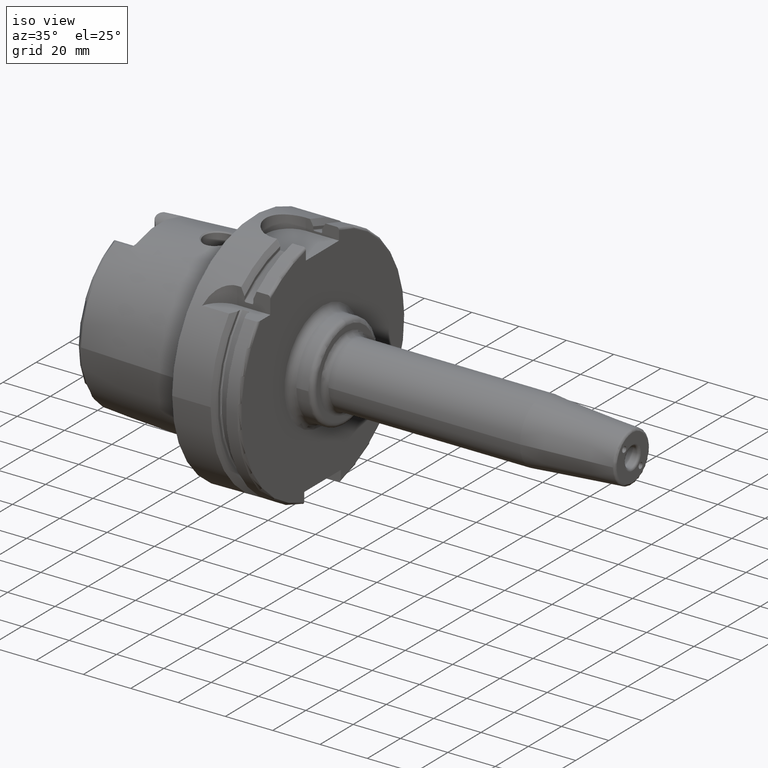
[diagram: clean part render]
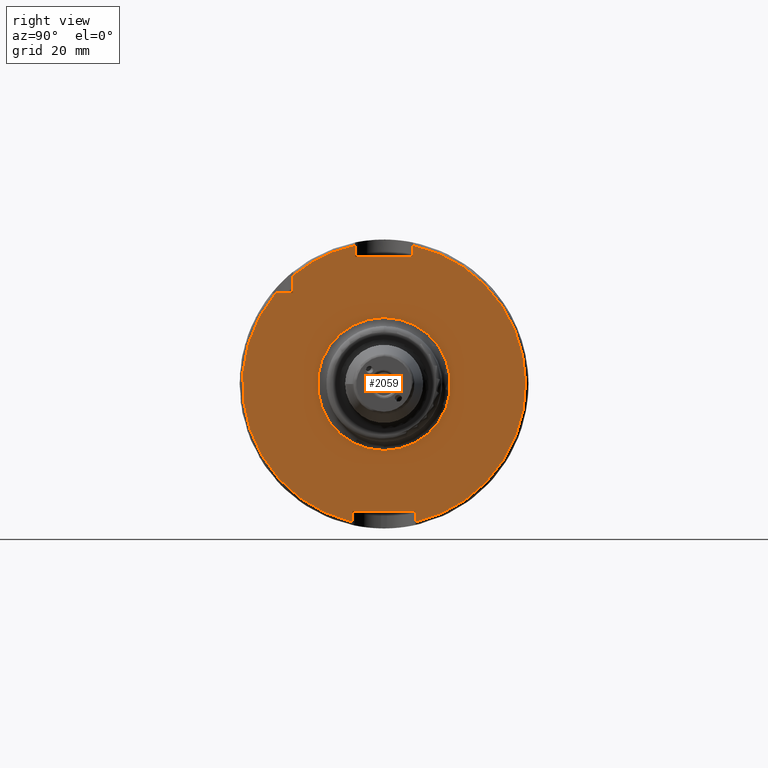
[diagram: tour spotlight — one face highlighted and labeled with its STEP entity id]
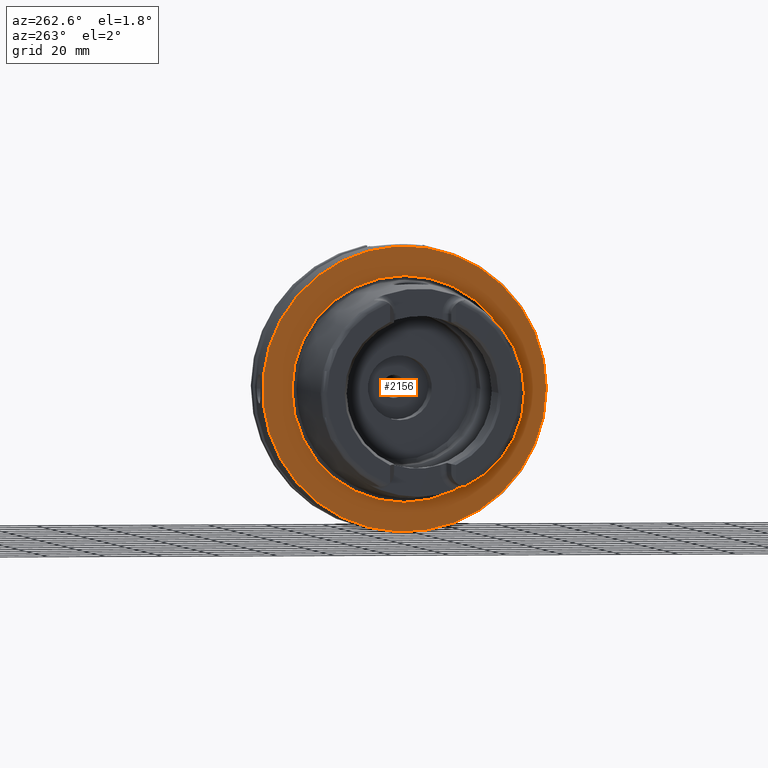
[diagram: tour spotlight — one face highlighted and labeled with its STEP entity id]
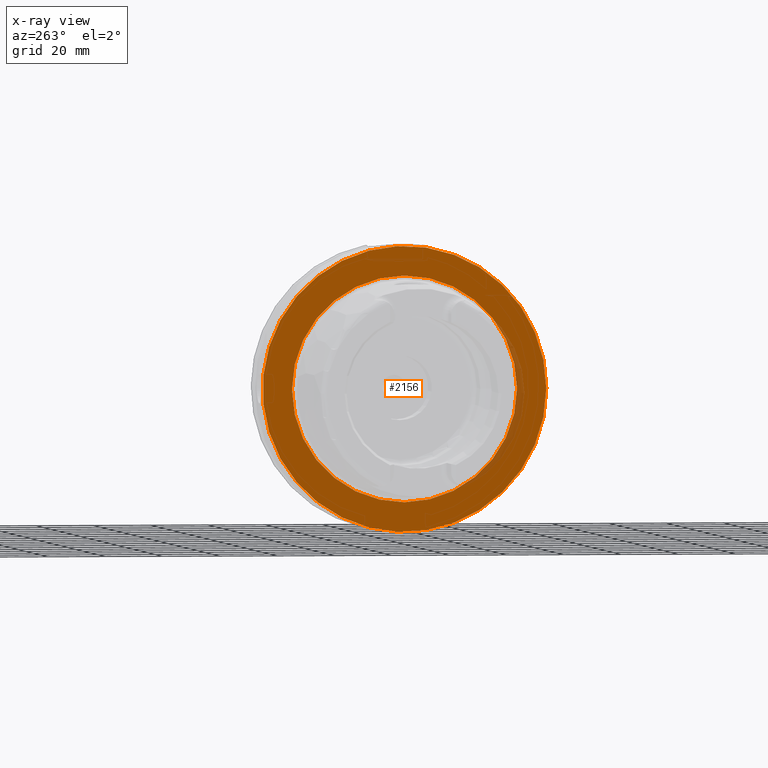
[diagram: x-ray of the same camera — body ghosted, this tour face saturated]
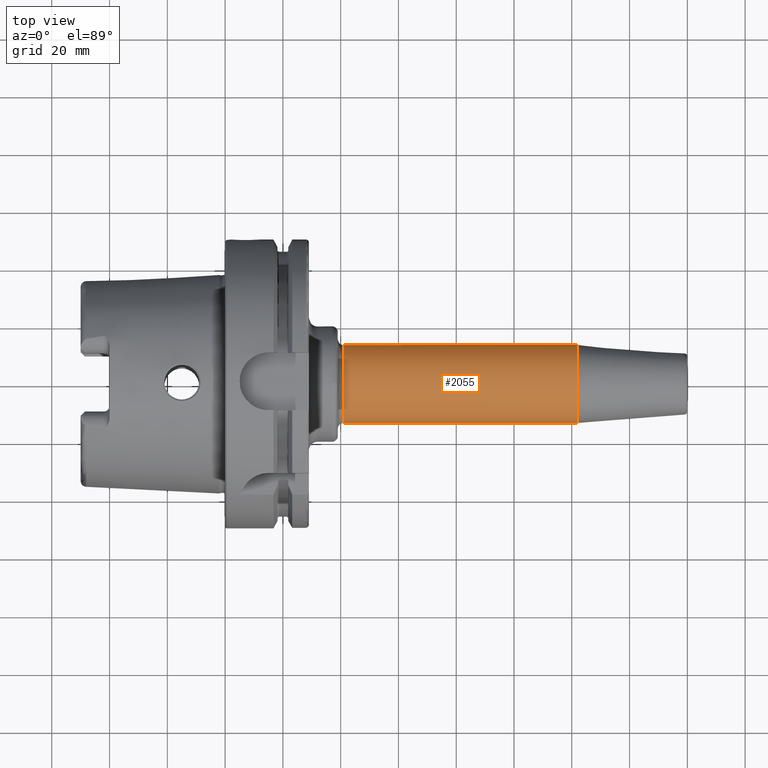
[diagram: tour spotlight — one face highlighted and labeled with its STEP entity id]
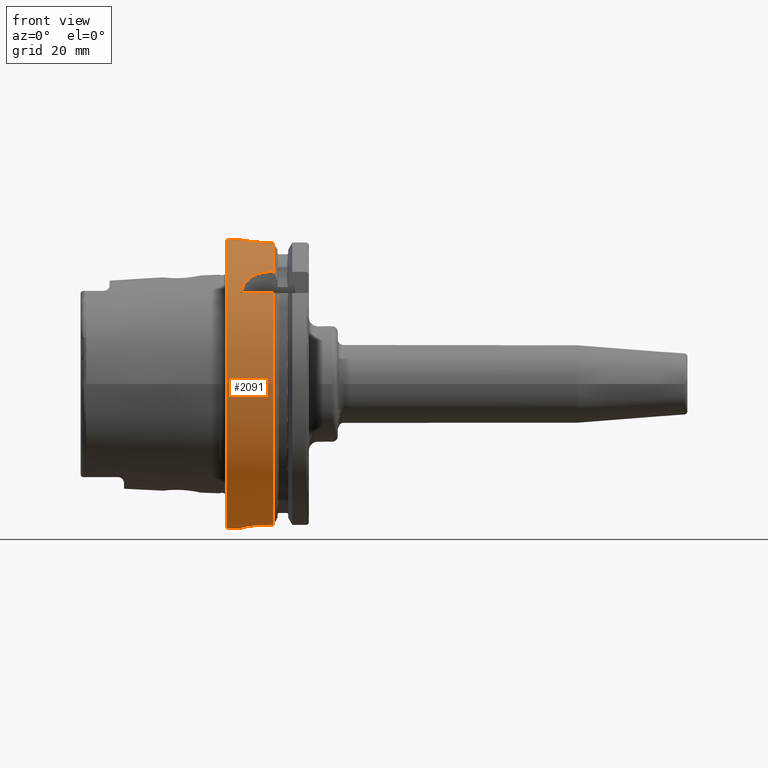
[diagram: tour spotlight — one face highlighted and labeled with its STEP entity id]
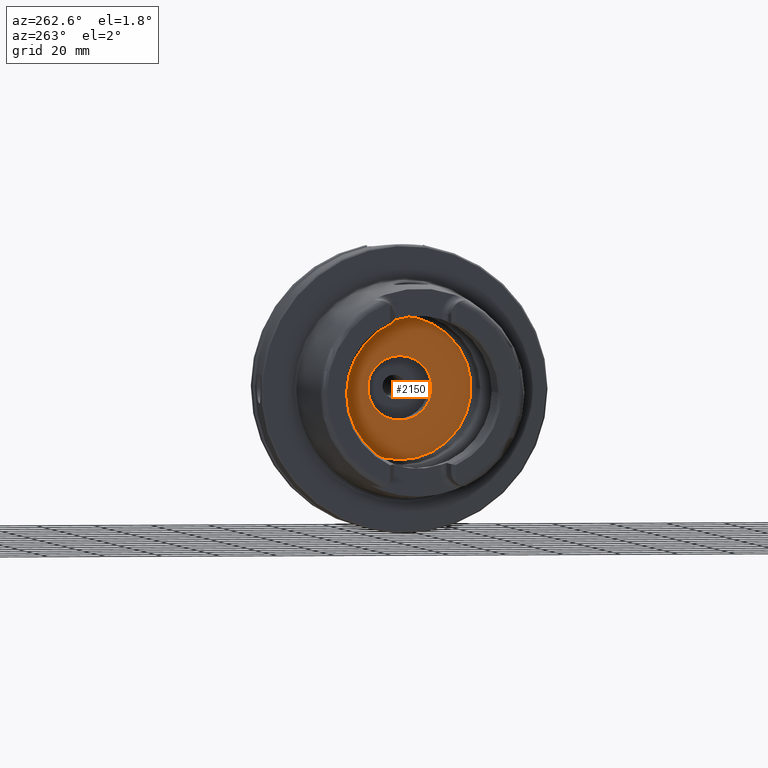
[diagram: tour spotlight — one face highlighted and labeled with its STEP entity id]
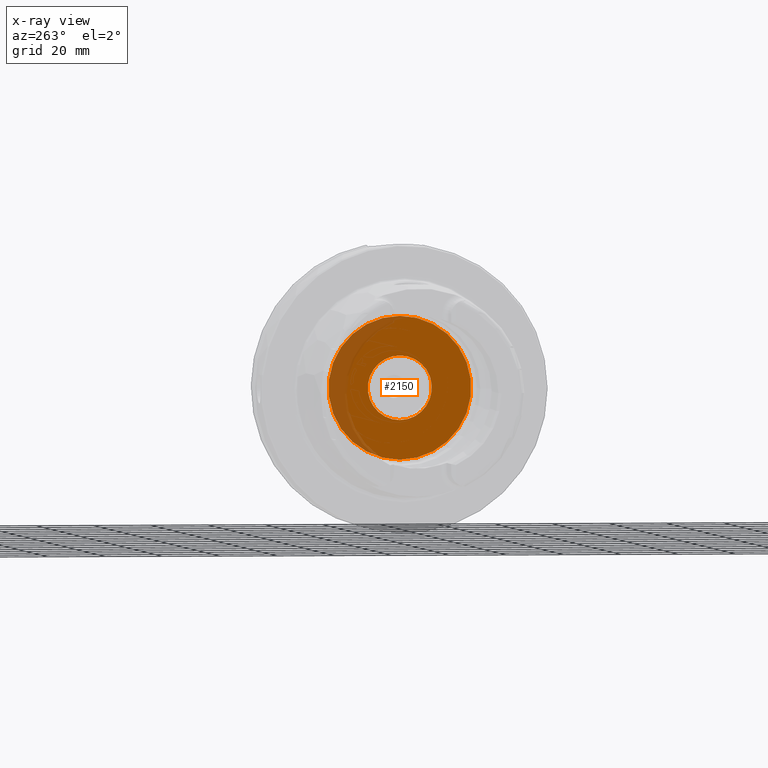
[diagram: x-ray of the same camera — body ghosted, this tour face saturated]
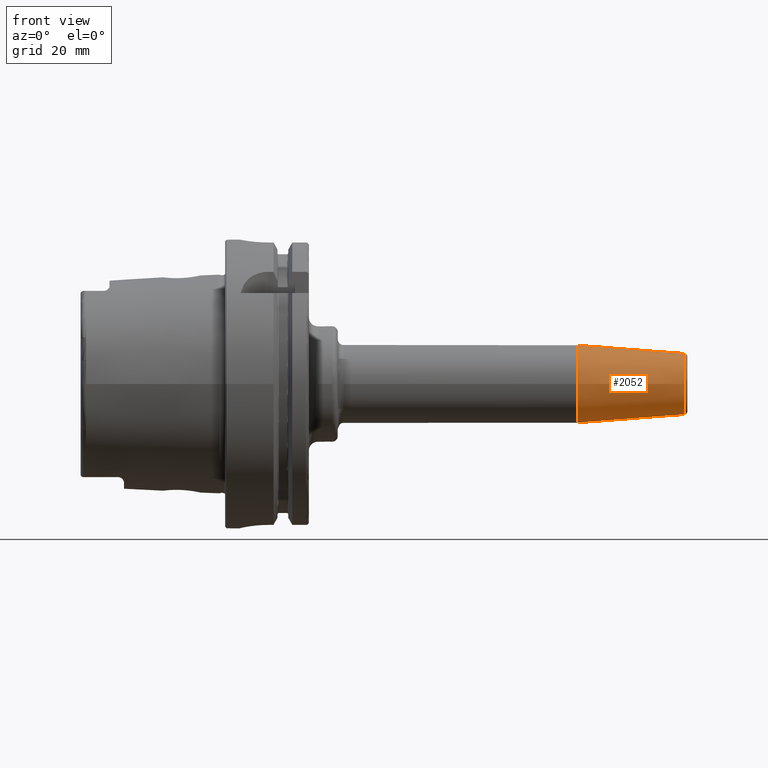
[diagram: tour spotlight — one face highlighted and labeled with its STEP entity id]
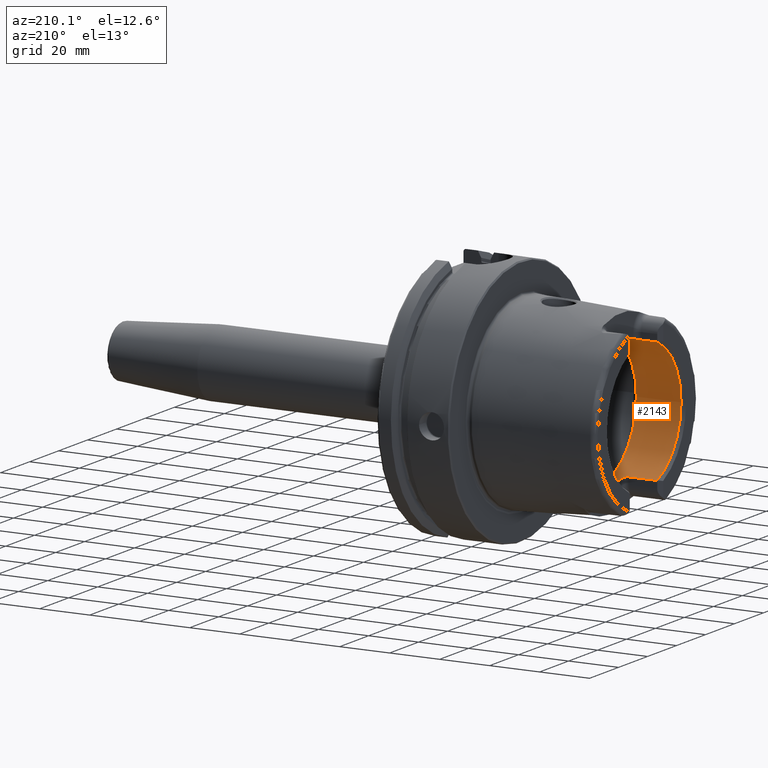
[diagram: tour spotlight — one face highlighted and labeled with its STEP entity id]
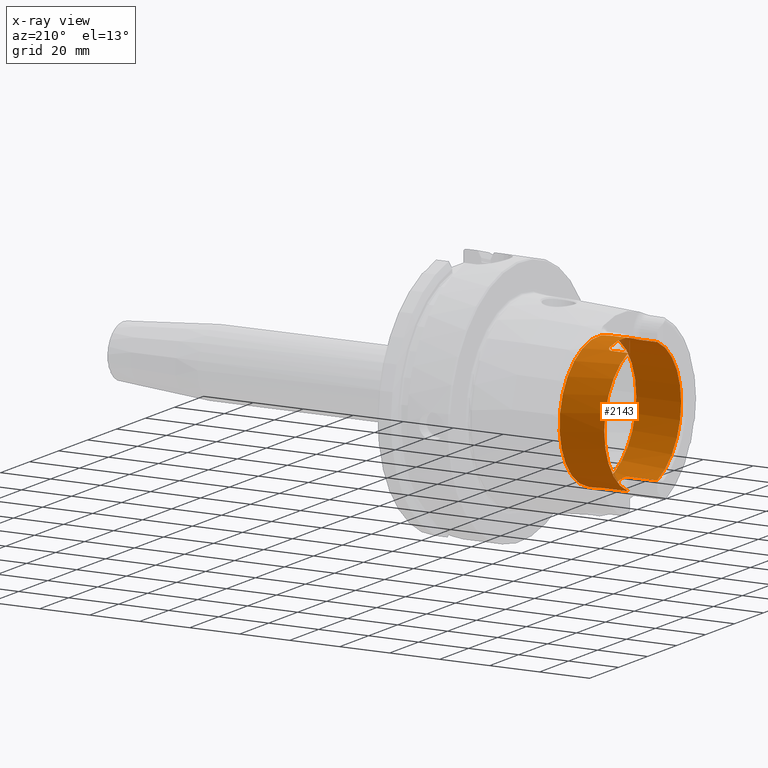
[diagram: x-ray of the same camera — body ghosted, this tour face saturated]
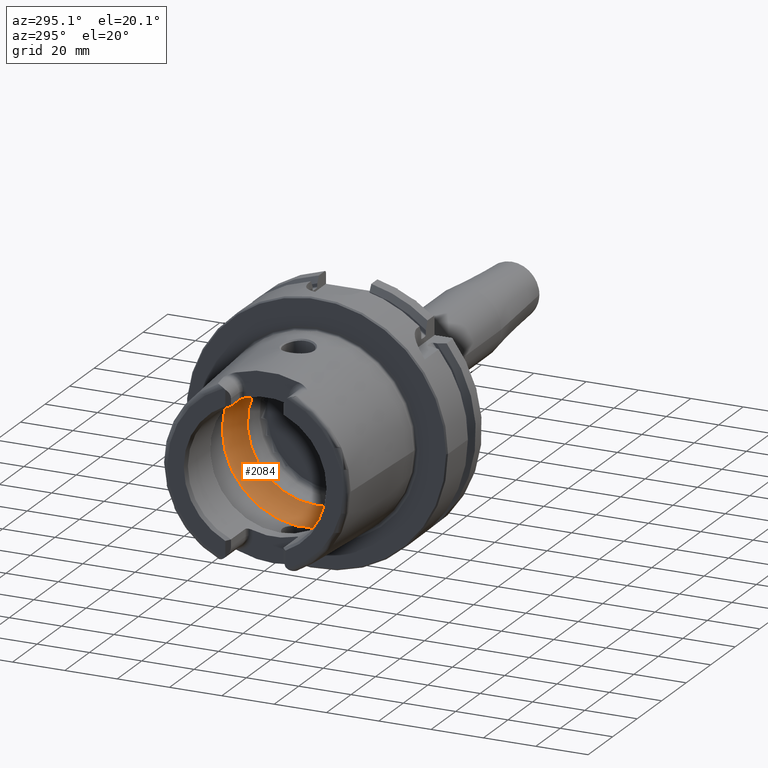
[diagram: tour spotlight — one face highlighted and labeled with its STEP entity id]
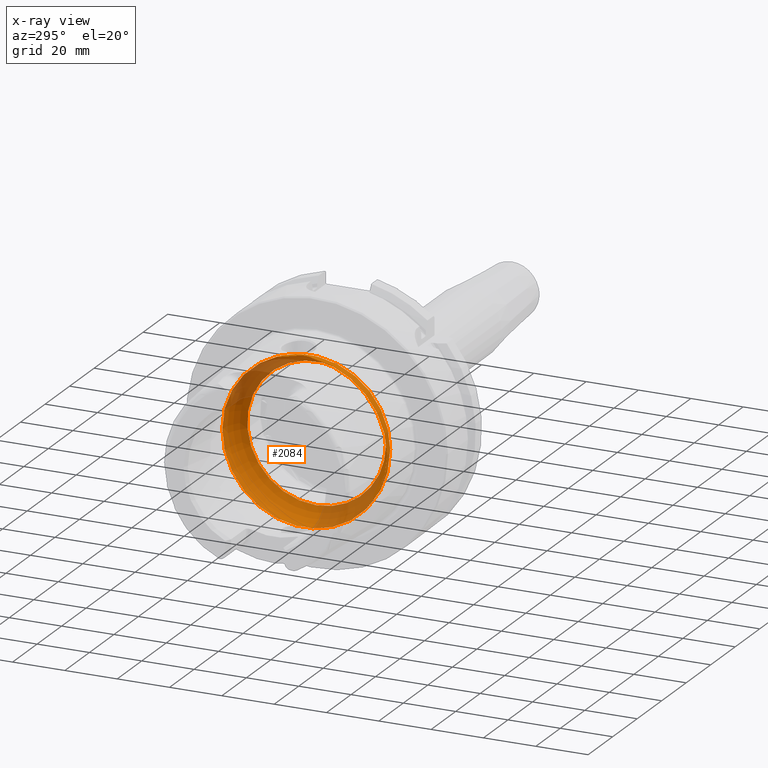
[diagram: x-ray of the same camera — body ghosted, this tour face saturated]
A machine part: a face-by-face anatomy tour. The part has 124 B-rep faces; the first image is the clean iso view, then the 8 largest visible faces are spotlighted one at a time (largest first), each with its STEP entity span.

Face 1 — right view, entity #2059. In plain terms, the highlighted planar face has unit normal (1, 0, 0).
Definition (entity closure, byte-faithful):
#89=FACE_BOUND('',#358,.T.);
#101=PLANE('',#2232);
#229=FACE_OUTER_BOUND('',#357,.T.);
#357=EDGE_LOOP('',(#1439,#1440,#1441,#1442,#1443,#1444,#1445,#1446,#1447,
#1448,#1449));
#358=EDGE_LOOP('',(#1450));
#484=LINE('',#3196,#592);
#485=LINE('',#3200,#593);
#486=LINE('',#3202,#594);
#487=LINE('',#3204,#595);
#488=LINE('',#3208,#596);
#489=LINE('',#3210,#597);
#490=LINE('',#3212,#598);
#491=LINE('',#3215,#599);
#592=VECTOR('',#2558,10.);
#593=VECTOR('',#2561,10.);
#594=VECTOR('',#2562,10.);
#595=VECTOR('',#2563,10.);
#596=VECTOR('',#2566,10.);
#597=VECTOR('',#2567,10.);
#598=VECTOR('',#2568,10.);
#599=VECTOR('',#2571,10.);
#715=CIRCLE('',#2231,23.);
#716=CIRCLE('',#2233,49.);
#717=CIRCLE('',#2234,49.);
#718=CIRCLE('',#2235,49.);
#855=VERTEX_POINT('',#3190);
#856=VERTEX_POINT('',#3194);
#857=VERTEX_POINT('',#3195);
#858=VERTEX_POINT('',#3197);
#859=VERTEX_POINT('',#3199);
#860=VERTEX_POINT('',#3201);
#861=VERTEX_POINT('',#3203);
#862=VERTEX_POINT('',#3205);
#863=VERTEX_POINT('',#3207);
#864=VERTEX_POINT('',#3209);
#865=VERTEX_POINT('',#3211);
#866=VERTEX_POINT('',#3213);
#1079=EDGE_CURVE('',#855,#855,#715,.T.);
#1080=EDGE_CURVE('',#856,#857,#484,.T.);
#1081=EDGE_CURVE('',#857,#858,#716,.T.);
#1082=EDGE_CURVE('',#858,#859,#485,.T.);
#1083=EDGE_CURVE('',#859,#860,#486,.T.);
#1084=EDGE_CURVE('',#860,#861,#487,.T.);
#1085=EDGE_CURVE('',#861,#862,#717,.T.);
#1086=EDGE_CURVE('',#862,#863,#488,.T.);
#1087=EDGE_CURVE('',#863,#864,#489,.T.);
#1088=EDGE_CURVE('',#864,#865,#490,.T.);
#1089=EDGE_CURVE('',#865,#866,#718,.T.);
#1090=EDGE_CURVE('',#866,#856,#491,.T.);
#1439=ORIENTED_EDGE('',*,*,#1080,.T.);
#1440=ORIENTED_EDGE('',*,*,#1081,.T.);
#1441=ORIENTED_EDGE('',*,*,#1082,.T.);
#1442=ORIENTED_EDGE('',*,*,#1083,.T.);
#1443=ORIENTED_EDGE('',*,*,#1084,.T.);
#1444=ORIENTED_EDGE('',*,*,#1085,.T.);
#1445=ORIENTED_EDGE('',*,*,#1086,.T.);
#1446=ORIENTED_EDGE('',*,*,#1087,.T.);
#1447=ORIENTED_EDGE('',*,*,#1088,.T.);
#1448=ORIENTED_EDGE('',*,*,#1089,.T.);
#1449=ORIENTED_EDGE('',*,*,#1090,.T.);
#1450=ORIENTED_EDGE('',*,*,#1079,.F.);
#2059=ADVANCED_FACE('',(#229,#89),#101,.T.);
#2231=AXIS2_PLACEMENT_3D('',#3192,#2554,#2555);
#2232=AXIS2_PLACEMENT_3D('',#3193,#2556,#2557);
#2233=AXIS2_PLACEMENT_3D('',#3198,#2559,#2560);
#2234=AXIS2_PLACEMENT_3D('',#3206,#2564,#2565);
#2235=AXIS2_PLACEMENT_3D('',#3214,#2569,#2570);
#2554=DIRECTION('center_axis',(1.,0.,0.));
#2555=DIRECTION('ref_axis',(0.,-1.,-1.22464679914735E-16));
#2556=DIRECTION('center_axis',(1.,0.,0.));
#2557=DIRECTION('ref_axis',(0.,0.,-1.));
#2558=DIRECTION('',(0.,-1.,0.));
#2559=DIRECTION('center_axis',(1.,0.,0.));
#2560=DIRECTION('ref_axis',(0.,0.,-1.));
#2561=DIRECTION('',(0.,0.,1.));
#2562=DIRECTION('',(0.,1.,0.));
#2563=DIRECTION('',(0.,0.,-1.));
#2564=DIRECTION('center_axis',(1.,0.,0.));
#2565=DIRECTION('ref_axis',(0.,0.,-1.));
#2566=DIRECTION('',(0.,0.,-1.));
#2567=DIRECTION('',(0.,-1.,0.));
#2568=DIRECTION('',(0.,0.,1.));
#2569=DIRECTION('center_axis',(1.,0.,0.));
#2570=DIRECTION('ref_axis',(0.,0.,-1.));
#2571=DIRECTION('',(0.,0.,-1.));
#3190=CARTESIAN_POINT('',(29.,-2.81668763803891E-15,-23.));
#3192=CARTESIAN_POINT('Origin',(29.,0.,0.));
#3193=CARTESIAN_POINT('Origin',(29.,0.,0.));
#3194=CARTESIAN_POINT('',(29.,-31.5,31.5));
#3195=CARTESIAN_POINT('',(29.,-37.5333185316726,31.5));
#3196=CARTESIAN_POINT('',(29.,-18.25,31.5));
#3197=CARTESIAN_POINT('',(29.,-11.,-47.7493455452533));
#3198=CARTESIAN_POINT('Origin',(29.,0.,0.));
#3199=CARTESIAN_POINT('',(29.,-11.,-44.));
#3200=CARTESIAN_POINT('',(29.,-11.,-22.));
#3201=CARTESIAN_POINT('',(29.,11.,-44.));
#3202=CARTESIAN_POINT('',(29.,-5.55111512312578E-16,-44.));
#3203=CARTESIAN_POINT('',(29.,11.,-47.7493455452533));
#3204=CARTESIAN_POINT('',(29.,11.,-22.));
#3205=CARTESIAN_POINT('',(29.,10.,47.9687398208458));
#3206=CARTESIAN_POINT('Origin',(29.,0.,0.));
#3207=CARTESIAN_POINT('',(29.,10.,44.));
#3208=CARTESIAN_POINT('',(29.,10.,22.));
#3209=CARTESIAN_POINT('',(29.,-10.,44.));
#3210=CARTESIAN_POINT('',(29.,0.,44.));
#3211=CARTESIAN_POINT('',(29.,-10.,47.9687398208458));
#3212=CARTESIAN_POINT('',(29.,-10.,22.));
#3213=CARTESIAN_POINT('',(29.,-31.5,37.5333185316726));
#3214=CARTESIAN_POINT('Origin',(29.,0.,0.));
#3215=CARTESIAN_POINT('',(29.,-31.5,15.75));

Face 2 — auxiliary view, entity #2156. An x-ray twin of the same camera follows (body ghosted, this face saturated) — the face is partly hidden behind the body. In plain terms, the highlighted planar face has unit normal (-1, 0, 0).
Definition (entity closure, byte-faithful):
#98=FACE_BOUND('',#464,.T.);
#135=PLANE('',#2441);
#326=FACE_OUTER_BOUND('',#463,.T.);
#463=EDGE_LOOP('',(#1977));
#464=EDGE_LOOP('',(#1978));
#821=CIRCLE('',#2440,39.2747800249997);
#822=CIRCLE('',#2442,49.5);
#1041=VERTEX_POINT('',#4630);
#1042=VERTEX_POINT('',#4634);
#1358=EDGE_CURVE('',#1041,#1041,#821,.T.);
#1359=EDGE_CURVE('',#1042,#1042,#822,.T.);
#1977=ORIENTED_EDGE('',*,*,#1359,.F.);
#1978=ORIENTED_EDGE('',*,*,#1358,.T.);
#2156=ADVANCED_FACE('',(#326,#98),#135,.T.);
#2440=AXIS2_PLACEMENT_3D('',#4632,#3069,#3070);
#2441=AXIS2_PLACEMENT_3D('',#4633,#3071,#3072);
#2442=AXIS2_PLACEMENT_3D('',#4635,#3073,#3074);
#3069=DIRECTION('center_axis',(1.,0.,0.));
#3070=DIRECTION('ref_axis',(0.,0.,-1.));
#3071=DIRECTION('center_axis',(-1.,0.,0.));
#3072=DIRECTION('ref_axis',(0.,0.,1.));
#3073=DIRECTION('center_axis',(1.,0.,0.));
#3074=DIRECTION('ref_axis',(0.,0.,-1.));
#4630=CARTESIAN_POINT('',(-1.04950770296597E-15,-39.2747800249997,-4.80977336448322E-15));
#4632=CARTESIAN_POINT('Origin',(0.,0.,0.));
#4633=CARTESIAN_POINT('Origin',(0.,49.5,0.));
#4634=CARTESIAN_POINT('',(1.28369537222284E-15,-49.5,-6.0620016557794E-15));
#4635=CARTESIAN_POINT('Origin',(0.,0.,0.));

Face 3 — top view, entity #2055. In plain terms, the highlighted cylindrical surface (bore or boss wall) has radius 13.5 mm, axis along (1, 0, 0).
Definition (entity closure, byte-faithful):
#179=CYLINDRICAL_SURFACE('',#2221,13.5);
#225=FACE_OUTER_BOUND('',#353,.T.);
#353=EDGE_LOOP('',(#1418,#1419,#1420,#1421,#1422));
#482=LINE('',#3176,#590);
#590=VECTOR('',#2534,13.5);
#703=CIRCLE('',#2213,13.5);
#706=CIRCLE('',#2217,13.5);
#707=CIRCLE('',#2218,13.5);
#846=VERTEX_POINT('',#3161);
#848=VERTEX_POINT('',#3167);
#849=VERTEX_POINT('',#3169);
#1065=EDGE_CURVE('',#846,#846,#703,.T.);
#1068=EDGE_CURVE('',#848,#849,#706,.T.);
#1069=EDGE_CURVE('',#849,#848,#707,.T.);
#1071=EDGE_CURVE('',#846,#849,#482,.T.);
#1418=ORIENTED_EDGE('',*,*,#1065,.F.);
#1419=ORIENTED_EDGE('',*,*,#1071,.T.);
#1420=ORIENTED_EDGE('',*,*,#1068,.F.);
#1421=ORIENTED_EDGE('',*,*,#1069,.F.);
#1422=ORIENTED_EDGE('',*,*,#1071,.F.);
#2055=ADVANCED_FACE('',(#225),#179,.T.);
#2213=AXIS2_PLACEMENT_3D('',#3163,#2516,#2517);
#2217=AXIS2_PLACEMENT_3D('',#3170,#2524,#2525);
#2218=AXIS2_PLACEMENT_3D('',#3171,#2526,#2527);
#2221=AXIS2_PLACEMENT_3D('',#3175,#2532,#2533);
#2516=DIRECTION('center_axis',(1.,0.,0.));
#2517=DIRECTION('ref_axis',(0.,0.,-1.));
#2524=DIRECTION('center_axis',(-1.,0.,0.));
#2525=DIRECTION('ref_axis',(0.,-1.,1.83697019872103E-16));
#2526=DIRECTION('center_axis',(-1.,0.,0.));
#2527=DIRECTION('ref_axis',(0.,-1.,1.83697019872103E-16));
#2532=DIRECTION('center_axis',(1.,0.,0.));
#2533=DIRECTION('ref_axis',(0.,1.,0.));
#2534=DIRECTION('',(-1.,0.,0.));
#3161=CARTESIAN_POINT('',(121.881385791476,-13.5,-1.65327317884893E-15));
#3163=CARTESIAN_POINT('Origin',(121.881385791476,0.,0.));
#3167=CARTESIAN_POINT('',(41.,-1.65327317884893E-15,13.5));
#3169=CARTESIAN_POINT('',(41.,-13.5,-1.65327317884893E-15));
#3170=CARTESIAN_POINT('Origin',(41.,0.,0.));
#3171=CARTESIAN_POINT('Origin',(41.,0.,0.));
#3175=CARTESIAN_POINT('Origin',(80.4406928957379,0.,0.));
#3176=CARTESIAN_POINT('',(80.4406928957379,-13.5,-1.65327317884893E-15));

Face 4 — front view, entity #2091. In plain terms, the highlighted cylindrical surface (bore or boss wall) has radius 50 mm, axis along (1, 0, 0).
Definition (entity closure, byte-faithful):
#56=B_SPLINE_CURVE_WITH_KNOTS('',3,(#3986,#3987,#3988,#3989,#3990,#3991,
#3992,#3993,#3994,#3995,#3996,#3997,#3998,#3999,#4000,#4001,#4002,#4003,
#4004,#4005,#4006,#4007,#4008,#4009,#4010,#4011),.UNSPECIFIED.,.F.,.F.,
(4,2,2,2,2,2,2,2,2,2,2,2,4),(0.,0.188478911015149,0.376957822030298,0.565436091508923,
0.753914360987547,0.942392630466172,1.1308708999448,1.31934981095995,1.50782872197509,
1.69630763299024,1.88478654400539,2.07326481348402,2.26174308296264),
 .UNSPECIFIED.);
#57=B_SPLINE_CURVE_WITH_KNOTS('',3,(#4012,#4013,#4014,#4015,#4016,#4017,
#4018,#4019,#4020,#4021),.UNSPECIFIED.,.F.,.F.,(4,2,2,2,4),(2.26174308296264,
2.45022135244127,2.63869962191989,2.82717853293504,3.01565744395019),
 .UNSPECIFIED.);
#58=B_SPLINE_CURVE_WITH_KNOTS('',3,(#4025,#4026,#4027,#4028,#4029,#4030,
#4031,#4032,#4033,#4034,#4035,#4036),.UNSPECIFIED.,.F.,.F.,(4,2,2,2,2,4),
(1.13213255574021,1.59216410027009,1.87572541272146,2.15928672517283,2.38471683342296,
2.61014694167308),.UNSPECIFIED.);
#65=B_SPLINE_CURVE_WITH_KNOTS('',3,(#4149,#4150,#4151,#4152,#4153,#4154,
#4155,#4156,#4157,#4158,#4159,#4160,#4161,#4162,#4163,#4164,#4165,#4166),
 .UNSPECIFIED.,.F.,.F.,(4,2,2,2,2,2,2,2,4),(0.,0.377795255890194,0.755590511780389,
1.13336459804459,1.51113868430879,1.88891277057299,2.26668685683718,2.64448211272738,
3.02227736861757),.UNSPECIFIED.);
#66=B_SPLINE_CURVE_WITH_KNOTS('',3,(#4174,#4175,#4176,#4177,#4178,#4179,
#4180,#4181,#4182,#4183),.UNSPECIFIED.,.F.,.F.,(4,2,2,2,4),(0.,0.377863193874929,
0.755726387749858,1.13417752669663,1.51262866564341),.UNSPECIFIED.);
#67=B_SPLINE_CURVE_WITH_KNOTS('',3,(#4187,#4188,#4189,#4190,#4191,#4192,
#4193,#4194,#4195,#4196),.UNSPECIFIED.,.F.,.F.,(4,2,2,2,4),(1.50996806152532,
1.8884192004721,2.26687033941887,2.6447335332938,3.02259672716873),
 .UNSPECIFIED.);
#94=FACE_BOUND('',#395,.T.);
#192=CYLINDRICAL_SURFACE('',#2311,50.);
#261=FACE_OUTER_BOUND('',#394,.T.);
#394=EDGE_LOOP('',(#1639,#1640,#1641,#1642,#1643,#1644,#1645,#1646,#1647,
#1648,#1649,#1650,#1651,#1652,#1653,#1654,#1655,#1656));
#395=EDGE_LOOP('',(#1657,#1658));
#522=LINE('',#4042,#630);
#528=LINE('',#4094,#636);
#533=LINE('',#4147,#641);
#534=LINE('',#4168,#642);
#535=LINE('',#4172,#643);
#536=LINE('',#4198,#644);
#537=LINE('',#4202,#645);
#630=VECTOR('',#2750,10.);
#636=VECTOR('',#2758,10.);
#641=VECTOR('',#2767,10.);
#642=VECTOR('',#2768,10.);
#643=VECTOR('',#2771,10.);
#644=VECTOR('',#2774,10.);
#645=VECTOR('',#2777,50.);
#757=CIRCLE('',#2312,50.);
#758=CIRCLE('',#2313,50.);
#759=CIRCLE('',#2314,50.);
#760=CIRCLE('',#2315,50.);
#761=CIRCLE('',#2316,50.);
#762=CIRCLE('',#2317,50.);
#941=VERTEX_POINT('',#3983);
#942=VERTEX_POINT('',#3985);
#943=VERTEX_POINT('',#4023);
#944=VERTEX_POINT('',#4024);
#946=VERTEX_POINT('',#4041);
#955=VERTEX_POINT('',#4093);
#964=VERTEX_POINT('',#4144);
#965=VERTEX_POINT('',#4146);
#966=VERTEX_POINT('',#4148);
#967=VERTEX_POINT('',#4167);
#968=VERTEX_POINT('',#4169);
#969=VERTEX_POINT('',#4171);
#970=VERTEX_POINT('',#4173);
#971=VERTEX_POINT('',#4184);
#972=VERTEX_POINT('',#4186);
#973=VERTEX_POINT('',#4197);
#974=VERTEX_POINT('',#4199);
#975=VERTEX_POINT('',#4201);
#1192=EDGE_CURVE('',#942,#941,#56,.T.);
#1193=EDGE_CURVE('',#941,#942,#57,.T.);
#1194=EDGE_CURVE('',#943,#944,#58,.T.);
#1197=EDGE_CURVE('',#944,#946,#522,.T.);
#1208=EDGE_CURVE('',#955,#943,#528,.T.);
#1218=EDGE_CURVE('',#964,#946,#757,.T.);
#1219=EDGE_CURVE('',#964,#965,#533,.T.);
#1220=EDGE_CURVE('',#965,#966,#65,.T.);
#1221=EDGE_CURVE('',#966,#967,#534,.T.);
#1222=EDGE_CURVE('',#968,#967,#758,.T.);
#1223=EDGE_CURVE('',#968,#969,#535,.T.);
#1224=EDGE_CURVE('',#969,#970,#66,.T.);
#1225=EDGE_CURVE('',#970,#971,#759,.T.);
#1226=EDGE_CURVE('',#971,#972,#67,.T.);
#1227=EDGE_CURVE('',#972,#973,#536,.T.);
#1228=EDGE_CURVE('',#974,#973,#760,.T.);
#1229=EDGE_CURVE('',#974,#975,#537,.T.);
#1230=EDGE_CURVE('',#975,#975,#761,.T.);
#1231=EDGE_CURVE('',#955,#974,#762,.T.);
#1639=ORIENTED_EDGE('',*,*,#1208,.T.);
#1640=ORIENTED_EDGE('',*,*,#1194,.T.);
#1641=ORIENTED_EDGE('',*,*,#1197,.T.);
#1642=ORIENTED_EDGE('',*,*,#1218,.F.);
#1643=ORIENTED_EDGE('',*,*,#1219,.T.);
#1644=ORIENTED_EDGE('',*,*,#1220,.T.);
#1645=ORIENTED_EDGE('',*,*,#1221,.T.);
#1646=ORIENTED_EDGE('',*,*,#1222,.F.);
#1647=ORIENTED_EDGE('',*,*,#1223,.T.);
#1648=ORIENTED_EDGE('',*,*,#1224,.T.);
#1649=ORIENTED_EDGE('',*,*,#1225,.T.);
#1650=ORIENTED_EDGE('',*,*,#1226,.T.);
#1651=ORIENTED_EDGE('',*,*,#1227,.T.);
#1652=ORIENTED_EDGE('',*,*,#1228,.F.);
#1653=ORIENTED_EDGE('',*,*,#1229,.T.);
#1654=ORIENTED_EDGE('',*,*,#1230,.T.);
#1655=ORIENTED_EDGE('',*,*,#1229,.F.);
#1656=ORIENTED_EDGE('',*,*,#1231,.F.);
#1657=ORIENTED_EDGE('',*,*,#1192,.T.);
#1658=ORIENTED_EDGE('',*,*,#1193,.T.);
#2091=ADVANCED_FACE('',(#261,#94),#192,.T.);
#2311=AXIS2_PLACEMENT_3D('',#4143,#2763,#2764);
#2312=AXIS2_PLACEMENT_3D('',#4145,#2765,#2766);
#2313=AXIS2_PLACEMENT_3D('',#4170,#2769,#2770);
#2314=AXIS2_PLACEMENT_3D('',#4185,#2772,#2773);
#2315=AXIS2_PLACEMENT_3D('',#4200,#2775,#2776);
#2316=AXIS2_PLACEMENT_3D('',#4203,#2778,#2779);
#2317=AXIS2_PLACEMENT_3D('',#4204,#2780,#2781);
#2750=DIRECTION('',(1.,0.,0.));
#2758=DIRECTION('',(-1.,0.,0.));
#2763=DIRECTION('center_axis',(1.,0.,0.));
#2764=DIRECTION('ref_axis',(0.,1.,0.));
#2765=DIRECTION('center_axis',(1.,0.,0.));
#2766=DIRECTION('ref_axis',(0.,0.,-1.));
#2767=DIRECTION('',(-1.,0.,0.));
#2768=DIRECTION('',(1.,0.,0.));
#2769=DIRECTION('center_axis',(1.,0.,0.));
#2770=DIRECTION('ref_axis',(0.,0.,-1.));
#2771=DIRECTION('',(-1.,0.,0.));
#2772=DIRECTION('center_axis',(-1.,0.,0.));
#2773=DIRECTION('ref_axis',(0.,1.,0.));
#2774=DIRECTION('',(1.,0.,0.));
#2775=DIRECTION('center_axis',(1.,0.,0.));
#2776=DIRECTION('ref_axis',(0.,0.,-1.));
#2777=DIRECTION('',(-1.,0.,0.));
#2778=DIRECTION('center_axis',(1.,0.,0.));
#2779=DIRECTION('ref_axis',(0.,0.,-1.));
#2780=DIRECTION('center_axis',(1.,0.,0.));
#2781=DIRECTION('ref_axis',(0.,0.,-1.));
#3983=CARTESIAN_POINT('',(12.,50.,-6.12323399573677E-16));
#3985=CARTESIAN_POINT('',(6.99999999999999,49.749371855331,5.));
#3986=CARTESIAN_POINT('Ctrl Pts',(6.99999999999999,49.749371855331,5.));
#3987=CARTESIAN_POINT('Ctrl Pts',(6.37173696328283,49.749371855331,5.));
#3988=CARTESIAN_POINT('Ctrl Pts',(5.70188570880885,49.7624993987098,4.87435544587055));
#3989=CARTESIAN_POINT('Ctrl Pts',(4.4701142477173,49.8098541153698,4.36395693611591));
#3990=CARTESIAN_POINT('Ctrl Pts',(3.90815809537484,49.8433908660961,3.97922590724033));
#3991=CARTESIAN_POINT('Ctrl Pts',(3.02077560297968,49.9062957431473,3.09184341484517));
#3992=CARTESIAN_POINT('Ctrl Pts',(2.63604339567929,49.9397591808605,2.52988660036719));
#3993=CARTESIAN_POINT('Ctrl Pts',(2.12564400622109,49.9869460568296,1.29811292154946));
#3994=CARTESIAN_POINT('Ctrl Pts',(1.99999999999999,50.,0.628260898262081));
#3995=CARTESIAN_POINT('Ctrl Pts',(1.99999999999999,50.,-0.628260898262082));
#3996=CARTESIAN_POINT('Ctrl Pts',(2.12564400622109,49.9869460568296,-1.29811292154946));
#3997=CARTESIAN_POINT('Ctrl Pts',(2.63604339567929,49.9397591808605,-2.52988660036719));
#3998=CARTESIAN_POINT('Ctrl Pts',(3.02077560297968,49.9062957431473,-3.09184341484517));
#3999=CARTESIAN_POINT('Ctrl Pts',(3.90815809537484,49.8433908660961,-3.97922590724033));
#4000=CARTESIAN_POINT('Ctrl Pts',(4.4701142477173,49.8098541153698,-4.36395693611591));
#4001=CARTESIAN_POINT('Ctrl Pts',(5.70188570880885,49.7624993987098,-4.87435544587055));
#4002=CARTESIAN_POINT('Ctrl Pts',(6.37173696328283,49.749371855331,-5.));
#4003=CARTESIAN_POINT('Ctrl Pts',(7.62826303671716,49.749371855331,-5.));
#4004=CARTESIAN_POINT('Ctrl Pts',(8.29811429119113,49.7624993987098,-4.87435544587055));
#4005=CARTESIAN_POINT('Ctrl Pts',(9.52988575228269,49.8098541153698,-4.36395693611591));
#4006=CARTESIAN_POINT('Ctrl Pts',(10.0918419046251,49.8433908660961,-3.97922590724033));
#4007=CARTESIAN_POINT('Ctrl Pts',(10.9792243970203,49.9062957431473,-3.09184341484517));
#4008=CARTESIAN_POINT('Ctrl Pts',(11.3639566043207,49.9397591808605,-2.52988660036719));
#4009=CARTESIAN_POINT('Ctrl Pts',(11.8743559937789,49.9869460568296,-1.29811292154947));
#4010=CARTESIAN_POINT('Ctrl Pts',(12.,50.,-0.628260898262083));
#4011=CARTESIAN_POINT('Ctrl Pts',(12.,50.,-5.55111512312578E-16));
#4012=CARTESIAN_POINT('Ctrl Pts',(12.,50.,-5.55111512312578E-16));
#4013=CARTESIAN_POINT('Ctrl Pts',(12.,50.,0.628260898262082));
#4014=CARTESIAN_POINT('Ctrl Pts',(11.8743559937789,49.9869460568296,1.29811292154946));
#4015=CARTESIAN_POINT('Ctrl Pts',(11.3639566043207,49.9397591808605,2.52988660036719));
#4016=CARTESIAN_POINT('Ctrl Pts',(10.9792243970203,49.9062957431473,3.09184341484517));
#4017=CARTESIAN_POINT('Ctrl Pts',(10.0918419046251,49.8433908660961,3.97922590724033));
#4018=CARTESIAN_POINT('Ctrl Pts',(9.52988575228269,49.8098541153698,4.36395693611591));
#4019=CARTESIAN_POINT('Ctrl Pts',(8.29811429119113,49.7624993987098,4.87435544587055));
#4020=CARTESIAN_POINT('Ctrl Pts',(7.62826303671716,49.749371855331,5.));
#4021=CARTESIAN_POINT('Ctrl Pts',(6.99999999999999,49.749371855331,5.));
#4023=CARTESIAN_POINT('',(5.36310214079494,-38.8297566307078,31.5));
#4024=CARTESIAN_POINT('',(15.,-31.5,38.8297566307078));
#4025=CARTESIAN_POINT('Ctrl Pts',(5.36310214079494,-38.8297566307078,31.5));
#4026=CARTESIAN_POINT('Ctrl Pts',(5.63795050776221,-37.8378299510303,32.722738779917));
#4027=CARTESIAN_POINT('Ctrl Pts',(6.08245260240086,-36.8264130955983,33.8486741193789));
#4028=CARTESIAN_POINT('Ctrl Pts',(7.14730321206235,-35.2667182945212,35.4540138707062));
#4029=CARTESIAN_POINT('Ctrl Pts',(7.68113760815893,-34.6306580359392,36.0741351437033));
#4030=CARTESIAN_POINT('Ctrl Pts',(8.97436758466638,-33.4722127660808,37.1515365058173));
#4031=CARTESIAN_POINT('Ctrl Pts',(9.73574998094174,-32.9521170857844,37.6088911783762));
#4032=CARTESIAN_POINT('Ctrl Pts',(11.1521999725134,-32.2432973482077,38.2170233500259));
#4033=CARTESIAN_POINT('Ctrl Pts',(11.8888981504148,-31.9629772872452,38.4503075998006));
#4034=CARTESIAN_POINT('Ctrl Pts',(13.4369856471743,-31.5908755949743,38.7566077888176));
#4035=CARTESIAN_POINT('Ctrl Pts',(14.2485663058329,-31.5,38.8297566307078));
#4036=CARTESIAN_POINT('Ctrl Pts',(15.,-31.5,38.8297566307078));
#4041=CARTESIAN_POINT('',(16.7379709790786,-31.5,38.8297566307078));
#4042=CARTESIAN_POINT('',(8.61898548953931,-31.5,38.8297566307078));
#4093=CARTESIAN_POINT('',(16.7379709790786,-38.8297566307078,31.5));
#4094=CARTESIAN_POINT('',(8.61898548953931,-38.8297566307078,31.5));
#4143=CARTESIAN_POINT('Origin',(8.61898548953931,0.,0.));
#4144=CARTESIAN_POINT('',(16.7379709790786,-10.,48.9897948556636));
#4145=CARTESIAN_POINT('Origin',(16.7379709790786,0.,0.));
#4146=CARTESIAN_POINT('',(15.,-10.,48.9897948556636));
#4147=CARTESIAN_POINT('',(8.61898548953931,-10.,48.9897948556636));
#4148=CARTESIAN_POINT('',(15.,10.,48.9897948556636));
#4149=CARTESIAN_POINT('Ctrl Pts',(15.,-10.,48.9897948556636));
#4150=CARTESIAN_POINT('Ctrl Pts',(13.740682480366,-10.,48.9897948556636));
#4151=CARTESIAN_POINT('Ctrl Pts',(12.3998222283811,-9.74762796248614,49.0433876618447));
#4152=CARTESIAN_POINT('Ctrl Pts',(9.93707994969945,-8.72605417648382,49.2354150792771));
#4153=CARTESIAN_POINT('Ctrl Pts',(8.81489539818993,-7.95703102192089,49.3709085101933));
#4154=CARTESIAN_POINT('Ctrl Pts',(7.04301862271998,-6.18515424645094,49.6240337638318));
#4155=CARTESIAN_POINT('Ctrl Pts',(6.27395658455242,-5.06294861197626,49.7583347151863));
#4156=CARTESIAN_POINT('Ctrl Pts',(5.25235457764165,-2.60013306081865,49.9476188647081));
#4157=CARTESIAN_POINT('Ctrl Pts',(4.99999999999999,-1.259246954214,50.));
#4158=CARTESIAN_POINT('Ctrl Pts',(4.99999999999999,1.259246954214,50.));
#4159=CARTESIAN_POINT('Ctrl Pts',(5.25235457764165,2.60013306081865,49.9476188647081));
#4160=CARTESIAN_POINT('Ctrl Pts',(6.27395658455242,5.06294861197626,49.7583347151863));
#4161=CARTESIAN_POINT('Ctrl Pts',(7.04301862271998,6.18515424645094,49.6240337638318));
#4162=CARTESIAN_POINT('Ctrl Pts',(8.81489539818993,7.95703102192089,49.3709085101933));
#4163=CARTESIAN_POINT('Ctrl Pts',(9.93707994969945,8.72605417648382,49.2354150792771));
#4164=CARTESIAN_POINT('Ctrl Pts',(12.3998222283811,9.74762796248614,49.0433876618447));
#4165=CARTESIAN_POINT('Ctrl Pts',(13.740682480366,10.,48.9897948556636));
#4166=CARTESIAN_POINT('Ctrl Pts',(15.,10.,48.9897948556636));
#4167=CARTESIAN_POINT('',(16.7379709790786,10.,48.9897948556636));
#4168=CARTESIAN_POINT('',(8.61898548953931,10.,48.9897948556636));
#4169=CARTESIAN_POINT('',(16.7379709790786,11.,-48.7749935930288));
#4170=CARTESIAN_POINT('Origin',(16.7379709790786,0.,0.));
#4171=CARTESIAN_POINT('',(15.,11.,-48.7749935930288));
#4172=CARTESIAN_POINT('',(8.61898548953931,11.,-48.7749935930288));
#4173=CARTESIAN_POINT('',(4.99999999999999,0.999999999999997,-49.9899989998));
#4174=CARTESIAN_POINT('Ctrl Pts',(15.,11.,-48.7749935930288));
#4175=CARTESIAN_POINT('Ctrl Pts',(13.7404560204169,11.,-48.7749935930288));
#4176=CARTESIAN_POINT('Ctrl Pts',(12.3998213084084,10.7475295248871,-48.8340306344483));
#4177=CARTESIAN_POINT('Ctrl Pts',(9.9383361278342,9.72667325975831,-49.0475663096823));
#4178=CARTESIAN_POINT('Ctrl Pts',(8.81713821454868,8.95850056252305,-49.1990678796225));
#4179=CARTESIAN_POINT('Ctrl Pts',(7.04551978193545,7.18842719108522,-49.4887060645896));
#4180=CARTESIAN_POINT('Ctrl Pts',(6.27594389465425,6.06650925178,-49.6460359942126));
#4181=CARTESIAN_POINT('Ctrl Pts',(5.25307325920197,3.60309260864685,-49.8853600567865));
#4182=CARTESIAN_POINT('Ctrl Pts',(4.99999999999999,2.26125147049483,-49.9647689238702));
#4183=CARTESIAN_POINT('Ctrl Pts',(4.99999999999999,1.,-49.9899989998));
#4184=CARTESIAN_POINT('',(4.99999999999999,-1.00000000000001,-49.9899989998));
#4185=CARTESIAN_POINT('Origin',(4.99999999999999,0.,0.));
#4186=CARTESIAN_POINT('',(15.,-11.,-48.7749935930288));
#4187=CARTESIAN_POINT('Ctrl Pts',(4.99999999999999,-1.,-49.9899989998));
#4188=CARTESIAN_POINT('Ctrl Pts',(4.99999999999999,-2.26125147049483,-49.9647689238702));
#4189=CARTESIAN_POINT('Ctrl Pts',(5.25307325920197,-3.60309260864686,-49.8853600567865));
#4190=CARTESIAN_POINT('Ctrl Pts',(6.27594389465425,-6.06650925178001,-49.6460359942126));
#4191=CARTESIAN_POINT('Ctrl Pts',(7.04551978193545,-7.18842719108522,-49.4887060645896));
#4192=CARTESIAN_POINT('Ctrl Pts',(8.81713821454868,-8.95850056252306,-49.1990678796225));
#4193=CARTESIAN_POINT('Ctrl Pts',(9.9383361278342,-9.72667325975831,-49.0475663096823));
#4194=CARTESIAN_POINT('Ctrl Pts',(12.3998213084084,-10.7475295248871,-48.8340306344483));
#4195=CARTESIAN_POINT('Ctrl Pts',(13.7404560204169,-11.,-48.7749935930288));
#4196=CARTESIAN_POINT('Ctrl Pts',(15.,-11.,-48.7749935930288));
#4197=CARTESIAN_POINT('',(16.7379709790786,-11.,-48.7749935930288));
#4198=CARTESIAN_POINT('',(8.61898548953931,-11.,-48.7749935930288));
#4199=CARTESIAN_POINT('',(16.7379709790786,-50.,-6.12323399573677E-15));
#4200=CARTESIAN_POINT('Origin',(16.7379709790786,0.,0.));
#4201=CARTESIAN_POINT('',(0.5,-50.,-6.12323399573677E-15));
#4202=CARTESIAN_POINT('',(8.61898548953931,-50.,-6.12323399573677E-15));
#4203=CARTESIAN_POINT('Origin',(0.5,0.,0.));
#4204=CARTESIAN_POINT('Origin',(16.7379709790786,0.,0.));

Face 5 — auxiliary view, entity #2150. An x-ray twin of the same camera follows (body ghosted, this face saturated) — the face is partly hidden behind the body. In plain terms, the highlighted planar face has unit normal (1, 0, 0).
Definition (entity closure, byte-faithful):
#97=FACE_BOUND('',#457,.T.);
#134=PLANE('',#2425);
#320=FACE_OUTER_BOUND('',#456,.T.);
#456=EDGE_LOOP('',(#1947));
#457=EDGE_LOOP('',(#1948));
#805=CIRCLE('',#2414,11.188101);
#812=CIRCLE('',#2426,24.9);
#1028=VERTEX_POINT('',#4587);
#1034=VERTEX_POINT('',#4607);
#1337=EDGE_CURVE('',#1028,#1028,#805,.T.);
#1346=EDGE_CURVE('',#1034,#1034,#812,.T.);
#1947=ORIENTED_EDGE('',*,*,#1346,.T.);
#1948=ORIENTED_EDGE('',*,*,#1337,.T.);
#2150=ADVANCED_FACE('',(#320,#97),#134,.F.);
#2414=AXIS2_PLACEMENT_3D('',#4588,#3012,#3013);
#2425=AXIS2_PLACEMENT_3D('',#4606,#3036,#3037);
#2426=AXIS2_PLACEMENT_3D('',#4608,#3038,#3039);
#3012=DIRECTION('center_axis',(1.,0.,0.));
#3013=DIRECTION('ref_axis',(0.,0.,1.));
#3036=DIRECTION('center_axis',(1.,0.,0.));
#3037=DIRECTION('ref_axis',(0.,0.,-1.));
#3038=DIRECTION('center_axis',(-1.,0.,0.));
#3039=DIRECTION('ref_axis',(0.,0.,1.));
#4587=CARTESIAN_POINT('',(12.5,-1.37014720781873E-15,-11.188101));
#4588=CARTESIAN_POINT('Origin',(12.5,0.,0.));
#4606=CARTESIAN_POINT('Origin',(12.5,24.9,0.));
#4607=CARTESIAN_POINT('',(12.5,-3.04937052987691E-15,-24.9));
#4608=CARTESIAN_POINT('Origin',(12.5,0.,0.));

Face 6 — front view, entity #2052. In plain terms, the highlighted conical surface has half-angle 4.5 deg.
Definition (entity closure, byte-faithful):
#222=FACE_OUTER_BOUND('',#349,.T.);
#349=EDGE_LOOP('',(#1406,#1407,#1408,#1409,#1410));
#481=LINE('',#3162,#589);
#589=VECTOR('',#2515,12.);
#701=CIRCLE('',#2210,10.5725268420749);
#702=CIRCLE('',#2211,10.5725268420749);
#703=CIRCLE('',#2213,13.5);
#844=VERTEX_POINT('',#3155);
#845=VERTEX_POINT('',#3157);
#846=VERTEX_POINT('',#3161);
#1062=EDGE_CURVE('',#844,#845,#701,.T.);
#1063=EDGE_CURVE('',#845,#844,#702,.T.);
#1064=EDGE_CURVE('',#845,#846,#481,.T.);
#1065=EDGE_CURVE('',#846,#846,#703,.T.);
#1406=ORIENTED_EDGE('',*,*,#1063,.F.);
#1407=ORIENTED_EDGE('',*,*,#1064,.T.);
#1408=ORIENTED_EDGE('',*,*,#1065,.T.);
#1409=ORIENTED_EDGE('',*,*,#1064,.F.);
#1410=ORIENTED_EDGE('',*,*,#1062,.F.);
#2029=CONICAL_SURFACE('',#2212,12.,0.0785398163397448);
#2052=ADVANCED_FACE('',(#222),#2029,.T.);
#2210=AXIS2_PLACEMENT_3D('',#3158,#2509,#2510);
#2211=AXIS2_PLACEMENT_3D('',#3159,#2511,#2512);
#2212=AXIS2_PLACEMENT_3D('',#3160,#2513,#2514);
#2213=AXIS2_PLACEMENT_3D('',#3163,#2516,#2517);
#2509=DIRECTION('center_axis',(1.,0.,0.));
#2510=DIRECTION('ref_axis',(0.,-1.,3.06161699786838E-17));
#2511=DIRECTION('center_axis',(1.,0.,0.));
#2512=DIRECTION('ref_axis',(0.,-1.,3.06161699786838E-17));
#2513=DIRECTION('center_axis',(-1.,0.,0.));
#2514=DIRECTION('ref_axis',(0.,1.,0.));
#2515=DIRECTION('',(-0.996917333733128,-0.078459095727845,-9.60846804471011E-18));
#2516=DIRECTION('center_axis',(1.,0.,0.));
#2517=DIRECTION('ref_axis',(0.,0.,-1.));
#3155=CARTESIAN_POINT('',(159.078459095728,-1.29476111560465E-15,10.5725268420749));
#3157=CARTESIAN_POINT('',(159.078459095728,-10.5725268420749,-1.29476111560465E-15));
#3158=CARTESIAN_POINT('Origin',(159.078459095728,0.,-1.61845139450582E-15));
#3159=CARTESIAN_POINT('Origin',(159.078459095728,0.,-1.61845139450582E-15));
#3160=CARTESIAN_POINT('Origin',(140.940692895738,0.,0.));
#3161=CARTESIAN_POINT('',(121.881385791476,-13.5,-1.65327317884893E-15));
#3162=CARTESIAN_POINT('',(140.940692895738,-12.,-1.46957615897682E-15));
#3163=CARTESIAN_POINT('Origin',(121.881385791476,0.,0.));

Face 7 — auxiliary view, entity #2143. An x-ray twin of the same camera follows (body ghosted, this face saturated) — the face is partly hidden behind the body. In plain terms, the highlighted cylindrical surface (bore or boss wall) has radius 26.5 mm, axis along (-1, 0, 0).
Definition (entity closure, byte-faithful):
#80=B_SPLINE_CURVE_WITH_KNOTS('',3,(#4470,#4471,#4472,#4473,#4474,#4475,
#4476,#4477,#4478,#4479),.UNSPECIFIED.,.F.,.F.,(4,2,2,2,4),(0.307245873696209,
0.387318131676521,0.467390389656833,0.542677307505841,0.617964225354849),
 .UNSPECIFIED.);
#81=B_SPLINE_CURVE_WITH_KNOTS('',3,(#4488,#4489,#4490,#4491,#4492,#4493,
#4494,#4495,#4496,#4497),.UNSPECIFIED.,.F.,.F.,(4,2,2,2,4),(0.61796422535485,
0.694491364966707,0.771018504578565,0.849854597041439,0.928690689504313),
 .UNSPECIFIED.);
#82=B_SPLINE_CURVE_WITH_KNOTS('',3,(#4510,#4511,#4512,#4513,#4514,#4515,
#4516,#4517,#4518,#4519),.UNSPECIFIED.,.F.,.F.,(4,2,2,2,4),(0.617964225354849,
0.693251143203857,0.768538061052865,0.848610319033177,0.928682577013489),
 .UNSPECIFIED.);
#83=B_SPLINE_CURVE_WITH_KNOTS('',3,(#4539,#4540,#4541,#4542,#4543,#4544,
#4545,#4546,#4547,#4548),.UNSPECIFIED.,.F.,.F.,(4,2,2,2,4),(0.307245873696209,
0.387318131676521,0.467390389656833,0.542677307505841,0.617964225354849),
 .UNSPECIFIED.);
#208=CYLINDRICAL_SURFACE('',#2409,26.5);
#313=FACE_OUTER_BOUND('',#447,.T.);
#447=EDGE_LOOP('',(#1906,#1907,#1908,#1909,#1910,#1911,#1912,#1913,#1914,
#1915,#1916,#1917,#1918,#1919,#1920,#1921,#1922));
#500=LINE('',#3254,#608);
#508=LINE('',#3329,#616);
#512=LINE('',#3393,#620);
#571=LINE('',#4535,#679);
#575=LINE('',#4583,#683);
#608=VECTOR('',#2614,10.);
#616=VECTOR('',#2660,10.);
#620=VECTOR('',#2682,10.);
#679=VECTOR('',#2961,10.);
#683=VECTOR('',#3005,26.5);
#730=CIRCLE('',#2263,26.5);
#731=CIRCLE('',#2264,26.5);
#794=CIRCLE('',#2388,26.5);
#799=CIRCLE('',#2400,26.5);
#800=CIRCLE('',#2403,26.5);
#803=CIRCLE('',#2410,26.5);
#804=CIRCLE('',#2411,26.5);
#876=VERTEX_POINT('',#3244);
#879=VERTEX_POINT('',#3252);
#888=VERTEX_POINT('',#3301);
#890=VERTEX_POINT('',#3307);
#891=VERTEX_POINT('',#3309);
#897=VERTEX_POINT('',#3327);
#903=VERTEX_POINT('',#3360);
#908=VERTEX_POINT('',#3392);
#1015=VERTEX_POINT('',#4468);
#1017=VERTEX_POINT('',#4487);
#1021=VERTEX_POINT('',#4508);
#1022=VERTEX_POINT('',#4509);
#1024=VERTEX_POINT('',#4529);
#1026=VERTEX_POINT('',#4580);
#1027=VERTEX_POINT('',#4581);
#1108=EDGE_CURVE('',#876,#879,#500,.T.);
#1121=EDGE_CURVE('',#890,#891,#730,.T.);
#1122=EDGE_CURVE('',#891,#888,#731,.T.);
#1131=EDGE_CURVE('',#890,#897,#508,.T.);
#1144=EDGE_CURVE('',#908,#903,#512,.T.);
#1302=EDGE_CURVE('',#1015,#897,#80,.T.);
#1306=EDGE_CURVE('',#908,#1017,#81,.T.);
#1312=EDGE_CURVE('',#1021,#1022,#82,.T.);
#1318=EDGE_CURVE('',#1024,#1022,#794,.T.);
#1321=EDGE_CURVE('',#1021,#888,#571,.T.);
#1324=EDGE_CURVE('',#1024,#879,#83,.T.);
#1328=EDGE_CURVE('',#1015,#1017,#799,.T.);
#1330=EDGE_CURVE('',#876,#903,#800,.T.);
#1334=EDGE_CURVE('',#1026,#1027,#803,.T.);
#1335=EDGE_CURVE('',#1026,#891,#575,.T.);
#1336=EDGE_CURVE('',#1027,#1026,#804,.T.);
#1906=ORIENTED_EDGE('',*,*,#1334,.F.);
#1907=ORIENTED_EDGE('',*,*,#1335,.T.);
#1908=ORIENTED_EDGE('',*,*,#1121,.F.);
#1909=ORIENTED_EDGE('',*,*,#1131,.T.);
#1910=ORIENTED_EDGE('',*,*,#1302,.F.);
#1911=ORIENTED_EDGE('',*,*,#1328,.T.);
#1912=ORIENTED_EDGE('',*,*,#1306,.F.);
#1913=ORIENTED_EDGE('',*,*,#1144,.T.);
#1914=ORIENTED_EDGE('',*,*,#1330,.F.);
#1915=ORIENTED_EDGE('',*,*,#1108,.T.);
#1916=ORIENTED_EDGE('',*,*,#1324,.F.);
#1917=ORIENTED_EDGE('',*,*,#1318,.T.);
#1918=ORIENTED_EDGE('',*,*,#1312,.F.);
#1919=ORIENTED_EDGE('',*,*,#1321,.T.);
#1920=ORIENTED_EDGE('',*,*,#1122,.F.);
#1921=ORIENTED_EDGE('',*,*,#1335,.F.);
#1922=ORIENTED_EDGE('',*,*,#1336,.F.);
#2143=ADVANCED_FACE('',(#313),#208,.F.);
#2263=AXIS2_PLACEMENT_3D('',#3310,#2638,#2639);
#2264=AXIS2_PLACEMENT_3D('',#3311,#2640,#2641);
#2388=AXIS2_PLACEMENT_3D('',#4530,#2954,#2955);
#2400=AXIS2_PLACEMENT_3D('',#4557,#2982,#2983);
#2403=AXIS2_PLACEMENT_3D('',#4572,#2988,#2989);
#2409=AXIS2_PLACEMENT_3D('',#4579,#3001,#3002);
#2410=AXIS2_PLACEMENT_3D('',#4582,#3003,#3004);
#2411=AXIS2_PLACEMENT_3D('',#4584,#3006,#3007);
#2614=DIRECTION('',(1.,0.,0.));
#2638=DIRECTION('center_axis',(1.,0.,0.));
#2639=DIRECTION('ref_axis',(0.,-1.,0.));
#2640=DIRECTION('center_axis',(1.,0.,0.));
#2641=DIRECTION('ref_axis',(0.,-1.,0.));
#2660=DIRECTION('',(1.,0.,0.));
#2682=DIRECTION('',(-1.,0.,0.));
#2954=DIRECTION('center_axis',(-1.,0.,0.));
#2955=DIRECTION('ref_axis',(0.,1.,0.));
#2961=DIRECTION('',(-1.,0.,0.));
#2982=DIRECTION('center_axis',(-1.,0.,0.));
#2983=DIRECTION('ref_axis',(0.,1.,0.));
#2988=DIRECTION('center_axis',(1.,0.,0.));
#2989=DIRECTION('ref_axis',(0.,-1.,0.));
#3001=DIRECTION('center_axis',(-1.,0.,0.));
#3002=DIRECTION('ref_axis',(0.,1.,0.));
#3003=DIRECTION('center_axis',(-1.,0.,0.));
#3004=DIRECTION('ref_axis',(0.,0.,1.));
#3005=DIRECTION('',(-1.,0.,0.));
#3006=DIRECTION('center_axis',(-1.,0.,0.));
#3007=DIRECTION('ref_axis',(0.,0.,1.));
#3244=CARTESIAN_POINT('',(-48.5,10.01,-24.5367051577835));
#3252=CARTESIAN_POINT('',(-37.,10.01,-24.5367051577835));
#3254=CARTESIAN_POINT('',(-40.2903629710818,10.01,-24.5367051577835));
#3301=CARTESIAN_POINT('',(-48.5,-10.01,-24.5367051577835));
#3307=CARTESIAN_POINT('',(-48.5,-10.01,24.5367051577835));
#3309=CARTESIAN_POINT('',(-48.5,-26.5,3.24531401774049E-15));
#3310=CARTESIAN_POINT('Origin',(-48.5,0.,0.));
#3311=CARTESIAN_POINT('Origin',(-48.5,0.,0.));
#3327=CARTESIAN_POINT('',(-42.,-10.01,24.5367051577835));
#3329=CARTESIAN_POINT('',(-40.2903629710818,-10.01,24.5367051577835));
#3360=CARTESIAN_POINT('',(-48.5,10.01,24.5367051577835));
#3392=CARTESIAN_POINT('',(-42.,10.01,24.5367051577835));
#3393=CARTESIAN_POINT('',(-40.2903629710818,10.01,24.5367051577835));
#4468=CARTESIAN_POINT('',(-40.,-8.01,25.2604414054862));
#4470=CARTESIAN_POINT('Ctrl Pts',(-40.,-8.01,25.2604414054862));
#4471=CARTESIAN_POINT('Ctrl Pts',(-40.,-8.26442271458071,25.1797648285777));
#4472=CARTESIAN_POINT('Ctrl Pts',(-40.0513332778729,-8.53503831367686,25.0892968127514));
#4473=CARTESIAN_POINT('Ctrl Pts',(-40.2604388709541,-9.03317850506395,24.9142806373643));
#4474=CARTESIAN_POINT('Ctrl Pts',(-40.4182028025644,-9.2607746884821,24.8299262887475));
#4475=CARTESIAN_POINT('Ctrl Pts',(-40.7762398849713,-9.61038047170956,24.6966285655713));
#4476=CARTESIAN_POINT('Ctrl Pts',(-40.996584045901,-9.75993653512726,24.6374761492843));
#4477=CARTESIAN_POINT('Ctrl Pts',(-41.4829332858843,-9.95981108540838,24.557356442995));
#4478=CARTESIAN_POINT('Ctrl Pts',(-41.74904360717,-10.01,24.5367051577835));
#4479=CARTESIAN_POINT('Ctrl Pts',(-42.,-10.01,24.5367051577835));
#4487=CARTESIAN_POINT('',(-40.,8.01,25.2604414054862));
#4488=CARTESIAN_POINT('Ctrl Pts',(-42.,10.01,24.5367051577835));
#4489=CARTESIAN_POINT('Ctrl Pts',(-41.7449095346271,10.01,24.5367051577835));
#4490=CARTESIAN_POINT('Ctrl Pts',(-41.4747619014646,9.95816285425487,24.5580391842641));
#4491=CARTESIAN_POINT('Ctrl Pts',(-40.9823460284033,9.75229566196282,24.640515927451));
#4492=CARTESIAN_POINT('Ctrl Pts',(-40.7599680829949,9.59839520774108,24.7013267120605));
#4493=CARTESIAN_POINT('Ctrl Pts',(-40.4063494382929,9.24477656303909,24.8358806096526));
#4494=CARTESIAN_POINT('Ctrl Pts',(-40.2529543645221,9.01930384320105,24.9192727261742));
#4495=CARTESIAN_POINT('Ctrl Pts',(-40.049776768453,8.52719637786957,25.0919293188873));
#4496=CARTESIAN_POINT('Ctrl Pts',(-40.,8.26049490494288,25.1810103236462));
#4497=CARTESIAN_POINT('Ctrl Pts',(-40.,8.01,25.2604414054862));
#4508=CARTESIAN_POINT('',(-37.,-10.01,-24.5367051577835));
#4509=CARTESIAN_POINT('',(-35.,-8.01,-25.2604414054862));
#4510=CARTESIAN_POINT('Ctrl Pts',(-37.,-10.01,-24.5367051577835));
#4511=CARTESIAN_POINT('Ctrl Pts',(-36.74904360717,-10.01,-24.5367051577835));
#4512=CARTESIAN_POINT('Ctrl Pts',(-36.4829332858843,-9.95981108540838,-24.557356442995));
#4513=CARTESIAN_POINT('Ctrl Pts',(-35.9965840459011,-9.75993653512726,-24.6374761492843));
#4514=CARTESIAN_POINT('Ctrl Pts',(-35.7762398849713,-9.61038047170956,-24.6966285655713));
#4515=CARTESIAN_POINT('Ctrl Pts',(-35.4182028025644,-9.2607746884821,-24.8299262887475));
#4516=CARTESIAN_POINT('Ctrl Pts',(-35.2604388709541,-9.03317850506395,-24.9142806373643));
#4517=CARTESIAN_POINT('Ctrl Pts',(-35.0513332778729,-8.53503831367686,-25.0892968127514));
#4518=CARTESIAN_POINT('Ctrl Pts',(-35.,-8.26442271458071,-25.1797648285777));
#4519=CARTESIAN_POINT('Ctrl Pts',(-35.,-8.01,-25.2604414054862));
#4529=CARTESIAN_POINT('',(-35.,8.01,-25.2604414054862));
#4530=CARTESIAN_POINT('Origin',(-35.,0.,0.));
#4535=CARTESIAN_POINT('',(-40.2903629710818,-10.01,-24.5367051577835));
#4539=CARTESIAN_POINT('Ctrl Pts',(-35.,8.01,-25.2604414054862));
#4540=CARTESIAN_POINT('Ctrl Pts',(-35.,8.26442271458071,-25.1797648285777));
#4541=CARTESIAN_POINT('Ctrl Pts',(-35.0513332778729,8.53503831367686,-25.0892968127514));
#4542=CARTESIAN_POINT('Ctrl Pts',(-35.2604388709541,9.03317850506395,-24.9142806373643));
#4543=CARTESIAN_POINT('Ctrl Pts',(-35.4182028025644,9.2607746884821,-24.8299262887475));
#4544=CARTESIAN_POINT('Ctrl Pts',(-35.7762398849713,9.61038047170956,-24.6966285655713));
#4545=CARTESIAN_POINT('Ctrl Pts',(-35.9965840459011,9.75993653512726,-24.6374761492843));
#4546=CARTESIAN_POINT('Ctrl Pts',(-36.4829332858843,9.95981108540838,-24.557356442995));
#4547=CARTESIAN_POINT('Ctrl Pts',(-36.74904360717,10.01,-24.5367051577835));
#4548=CARTESIAN_POINT('Ctrl Pts',(-37.,10.01,-24.5367051577835));
#4557=CARTESIAN_POINT('Origin',(-40.,0.,0.));
#4572=CARTESIAN_POINT('Origin',(-48.5,0.,0.));
#4579=CARTESIAN_POINT('Origin',(-40.2903629710818,0.,0.));
#4580=CARTESIAN_POINT('',(-30.5807259421637,-26.5,3.24531401774049E-15));
#4581=CARTESIAN_POINT('',(-30.5807259421637,-3.24531401774049E-15,-26.5));
#4582=CARTESIAN_POINT('Origin',(-30.5807259421637,0.,0.));
#4583=CARTESIAN_POINT('',(-40.2903629710818,-26.5,3.24531401774049E-15));
#4584=CARTESIAN_POINT('Origin',(-30.5807259421637,0.,0.));

Face 8 — auxiliary view, entity #2084. An x-ray twin of the same camera follows (body ghosted, this face saturated) — the face is partly hidden behind the body. In plain terms, the highlighted toroidal blend (fillet) surface has major radius 19.5 mm and minor (blend) radius 12 mm.
Definition (entity closure, byte-faithful):
#48=B_SPLINE_CURVE_WITH_KNOTS('',3,(#3712,#3713,#3714,#3715,#3716,#3717,
#3718,#3719,#3720,#3721),.UNSPECIFIED.,.F.,.F.,(4,2,2,2,4),(-0.606113644645353,
-0.532141714710631,-0.407956541554012,-0.344441109025195,-0.303157612487306),
 .UNSPECIFIED.);
#50=B_SPLINE_CURVE_WITH_KNOTS('',3,(#3754,#3755,#3756,#3757,#3758,#3759,
#3760,#3761,#3762,#3763),.UNSPECIFIED.,.F.,.F.,(4,2,2,2,4),(-0.303157612487306,
-0.297161587155601,-0.247817233363509,-0.174446982686599,0.),
 .UNSPECIFIED.);
#53=B_SPLINE_CURVE_WITH_KNOTS('',3,(#3904,#3905,#3906,#3907,#3908,#3909,
#3910,#3911,#3912,#3913),.UNSPECIFIED.,.F.,.F.,(4,2,2,2,4),(-0.606113644645388,
-0.532141714710621,-0.407956541553997,-0.344441109025146,-0.303157612487227),
 .UNSPECIFIED.);
#55=B_SPLINE_CURVE_WITH_KNOTS('',3,(#3946,#3947,#3948,#3949,#3950,#3951,
#3952,#3953,#3954,#3955),.UNSPECIFIED.,.F.,.F.,(4,2,2,2,4),(-0.303157612487227,
-0.297161587155532,-0.247817233363497,-0.174446982686607,0.),
 .UNSPECIFIED.);
#143=TOROIDAL_SURFACE('',#2296,19.5,12.);
#254=FACE_OUTER_BOUND('',#387,.T.);
#387=EDGE_LOOP('',(#1587,#1588,#1589,#1590,#1591,#1592,#1593,#1594,#1595,
#1596,#1597));
#744=CIRCLE('',#2291,31.5);
#747=CIRCLE('',#2294,31.5);
#748=CIRCLE('',#2295,31.5);
#749=CIRCLE('',#2297,26.5);
#750=CIRCLE('',#2298,26.5);
#751=CIRCLE('',#2299,12.);
#925=VERTEX_POINT('',#3709);
#926=VERTEX_POINT('',#3711);
#927=VERTEX_POINT('',#3722);
#930=VERTEX_POINT('',#3902);
#931=VERTEX_POINT('',#3903);
#932=VERTEX_POINT('',#3914);
#933=VERTEX_POINT('',#3958);
#936=VERTEX_POINT('',#3968);
#937=VERTEX_POINT('',#3969);
#1168=EDGE_CURVE('',#926,#925,#48,.T.);
#1170=EDGE_CURVE('',#925,#927,#50,.T.);
#1174=EDGE_CURVE('',#930,#931,#53,.T.);
#1176=EDGE_CURVE('',#931,#932,#55,.T.);
#1178=EDGE_CURVE('',#933,#930,#744,.T.);
#1182=EDGE_CURVE('',#927,#933,#747,.T.);
#1183=EDGE_CURVE('',#932,#926,#748,.T.);
#1184=EDGE_CURVE('',#936,#937,#749,.T.);
#1185=EDGE_CURVE('',#937,#936,#750,.T.);
#1186=EDGE_CURVE('',#937,#925,#751,.T.);
#1587=ORIENTED_EDGE('',*,*,#1184,.F.);
#1588=ORIENTED_EDGE('',*,*,#1185,.F.);
#1589=ORIENTED_EDGE('',*,*,#1186,.T.);
#1590=ORIENTED_EDGE('',*,*,#1170,.T.);
#1591=ORIENTED_EDGE('',*,*,#1182,.T.);
#1592=ORIENTED_EDGE('',*,*,#1178,.T.);
#1593=ORIENTED_EDGE('',*,*,#1174,.T.);
#1594=ORIENTED_EDGE('',*,*,#1176,.T.);
#1595=ORIENTED_EDGE('',*,*,#1183,.T.);
#1596=ORIENTED_EDGE('',*,*,#1168,.T.);
#1597=ORIENTED_EDGE('',*,*,#1186,.F.);
#2084=ADVANCED_FACE('',(#254),#143,.F.);
#2291=AXIS2_PLACEMENT_3D('',#3959,#2709,#2710);
#2294=AXIS2_PLACEMENT_3D('',#3965,#2716,#2717);
#2295=AXIS2_PLACEMENT_3D('',#3966,#2718,#2719);
#2296=AXIS2_PLACEMENT_3D('',#3967,#2720,#2721);
#2297=AXIS2_PLACEMENT_3D('',#3970,#2722,#2723);
#2298=AXIS2_PLACEMENT_3D('',#3971,#2724,#2725);
#2299=AXIS2_PLACEMENT_3D('',#3972,#2726,#2727);
#2709=DIRECTION('center_axis',(-1.,0.,0.));
#2710=DIRECTION('ref_axis',(0.,0.,1.));
#2716=DIRECTION('center_axis',(-1.,0.,0.));
#2717=DIRECTION('ref_axis',(0.,0.,1.));
#2718=DIRECTION('center_axis',(-1.,0.,0.));
#2719=DIRECTION('ref_axis',(0.,0.,1.));
#2720=DIRECTION('center_axis',(-1.,0.,0.));
#2721=DIRECTION('ref_axis',(0.,0.,1.));
#2722=DIRECTION('center_axis',(-1.,0.,0.));
#2723=DIRECTION('ref_axis',(0.,0.,1.));
#2724=DIRECTION('center_axis',(-1.,0.,0.));
#2725=DIRECTION('ref_axis',(0.,0.,1.));
#2726=DIRECTION('center_axis',(0.,1.,-1.22464679914735E-16));
#2727=DIRECTION('ref_axis',(0.,-1.22464679914735E-16,-1.));
#3709=CARTESIAN_POINT('',(-9.,8.53116613017712E-16,-31.4767398822284));
#3711=CARTESIAN_POINT('',(-9.74679434480896,2.89893607109041,-31.3663222207471));
#3712=CARTESIAN_POINT('Ctrl Pts',(-9.74679434480898,2.89893607109041,-31.3663222207471));
#3713=CARTESIAN_POINT('Ctrl Pts',(-9.62803941549252,2.68373847757038,-31.3862111979079));
#3714=CARTESIAN_POINT('Ctrl Pts',(-9.52250794022164,2.46123932380009,-31.4027818190648));
#3715=CARTESIAN_POINT('Ctrl Pts',(-9.27707880675082,1.84905941644996,-31.4398086116956));
#3716=CARTESIAN_POINT('Ctrl Pts',(-9.16318715371328,1.45014848778478,-31.4552463037839));
#3717=CARTESIAN_POINT('Ctrl Pts',(-9.05448554629564,0.83406948853474,-31.4697090180031));
#3718=CARTESIAN_POINT('Ctrl Pts',(-9.02875508102837,0.623753972628784,-31.4730355369691));
#3719=CARTESIAN_POINT('Ctrl Pts',(-9.00473516300901,0.275210595137741,-31.4761342948647));
#3720=CARTESIAN_POINT('Ctrl Pts',(-9.,0.13762179988616,-31.4767398822284));
#3721=CARTESIAN_POINT('Ctrl Pts',(-9.,9.71445146547012E-16,-31.4767398822284));
#3722=CARTESIAN_POINT('',(-9.74679434480896,-2.89893607109041,-31.3663222207471));
#3754=CARTESIAN_POINT('Ctrl Pts',(-9.,9.83483832277069E-16,-31.4767398822284));
#3755=CARTESIAN_POINT('Ctrl Pts',(-9.,-0.0199882245331354,-31.4767398822284));
#3756=CARTESIAN_POINT('Ctrl Pts',(-9.00009988237686,-0.0399771452902417,
-31.4767270717783));
#3757=CARTESIAN_POINT('Ctrl Pts',(-9.00194380057016,-0.224464346212316,
-31.4764905359115));
#3758=CARTESIAN_POINT('Ctrl Pts',(-9.01035297969853,-0.388827878343727,
-31.4754151841588));
#3759=CARTESIAN_POINT('Ctrl Pts',(-9.0480310904853,-0.796171644009328,-31.4705320701686));
#3760=CARTESIAN_POINT('Ctrl Pts',(-9.08543037238412,-1.03809779370842,-31.4656619259797));
#3761=CARTESIAN_POINT('Ctrl Pts',(-9.26119500081336,-1.84501079512327,-31.441850680052));
#3762=CARTESIAN_POINT('Ctrl Pts',(-9.4667592962906,-2.39148034786879,-31.4132222586341));
#3763=CARTESIAN_POINT('Ctrl Pts',(-9.74679434480898,-2.89893607109041,-31.3663222207471));
#3902=CARTESIAN_POINT('',(-9.74679434480896,-2.89893607109042,31.3663222207471));
#3903=CARTESIAN_POINT('',(-8.99999999999999,7.8372767397864E-16,31.4767398822284));
#3904=CARTESIAN_POINT('Ctrl Pts',(-9.74679434480898,-2.89893607109042,31.3663222207471));
#3905=CARTESIAN_POINT('Ctrl Pts',(-9.62803941549257,-2.6837384775705,31.3862111979079));
#3906=CARTESIAN_POINT('Ctrl Pts',(-9.52250794022172,-2.46123932380032,31.4027818190648));
#3907=CARTESIAN_POINT('Ctrl Pts',(-9.27707880675083,-1.84905941645004,31.4398086116956));
#3908=CARTESIAN_POINT('Ctrl Pts',(-9.16318715371328,-1.45014848778485,31.4552463037839));
#3909=CARTESIAN_POINT('Ctrl Pts',(-9.05448554629561,-0.834069488534672,
31.4697090180031));
#3910=CARTESIAN_POINT('Ctrl Pts',(-9.02875508102836,-0.623753972628598,
31.4730355369691));
#3911=CARTESIAN_POINT('Ctrl Pts',(-9.00473516300902,-0.275210595137865,
31.4761342948647));
#3912=CARTESIAN_POINT('Ctrl Pts',(-8.99999999999999,-0.137621799886392,
31.4767398822284));
#3913=CARTESIAN_POINT('Ctrl Pts',(-8.99999999999999,9.0205620750794E-16,
31.4767398822284));
#3914=CARTESIAN_POINT('',(-9.74679434480896,2.89893607109042,31.3663222207471));
#3946=CARTESIAN_POINT('Ctrl Pts',(-8.99999999999999,8.7920239009422E-16,
31.4767398822284));
#3947=CARTESIAN_POINT('Ctrl Pts',(-8.99999999999999,0.0199882245331231,
31.4767398822284));
#3948=CARTESIAN_POINT('Ctrl Pts',(-9.00009988237684,0.0399771452902225,
31.4767270717783));
#3949=CARTESIAN_POINT('Ctrl Pts',(-9.00194380057014,0.224464346212396,31.4764905359115));
#3950=CARTESIAN_POINT('Ctrl Pts',(-9.01035297969852,0.388827878343765,31.4754151841588));
#3951=CARTESIAN_POINT('Ctrl Pts',(-9.0480310904853,0.79617164400948,31.4705320701686));
#3952=CARTESIAN_POINT('Ctrl Pts',(-9.08543037238414,1.03809779370849,31.4656619259797));
#3953=CARTESIAN_POINT('Ctrl Pts',(-9.26119500081334,1.84501079512323,31.441850680052));
#3954=CARTESIAN_POINT('Ctrl Pts',(-9.46675929629059,2.39148034786878,31.4132222586341));
#3955=CARTESIAN_POINT('Ctrl Pts',(-9.74679434480898,2.89893607109043,31.3663222207471));
#3958=CARTESIAN_POINT('',(-9.74679434480896,-31.5,3.85763741731416E-15));
#3959=CARTESIAN_POINT('Origin',(-9.74679434480896,0.,0.));
#3965=CARTESIAN_POINT('Origin',(-9.74679434480896,0.,0.));
#3966=CARTESIAN_POINT('Origin',(-9.74679434480896,0.,0.));
#3967=CARTESIAN_POINT('Origin',(-9.74679434480896,0.,0.));
#3968=CARTESIAN_POINT('',(0.,-26.5,3.24531401774049E-15));
#3969=CARTESIAN_POINT('',(0.,-3.24531401774049E-15,-26.5));
#3970=CARTESIAN_POINT('Origin',(0.,0.,0.));
#3971=CARTESIAN_POINT('Origin',(0.,0.,0.));
#3972=CARTESIAN_POINT('Origin',(-9.74679434480896,-2.38806125833734E-15,
-19.5));